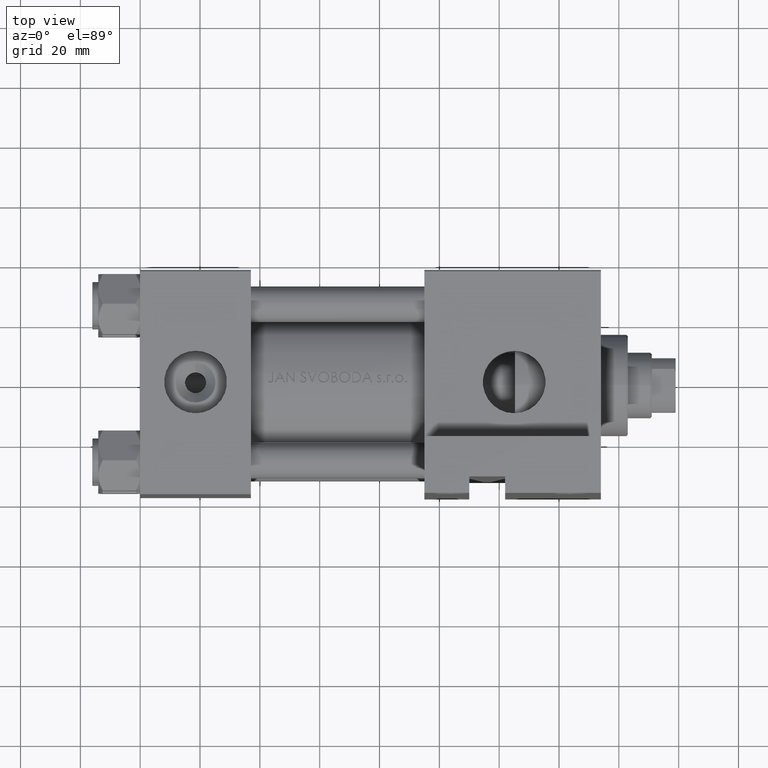
[diagram: clean part render]
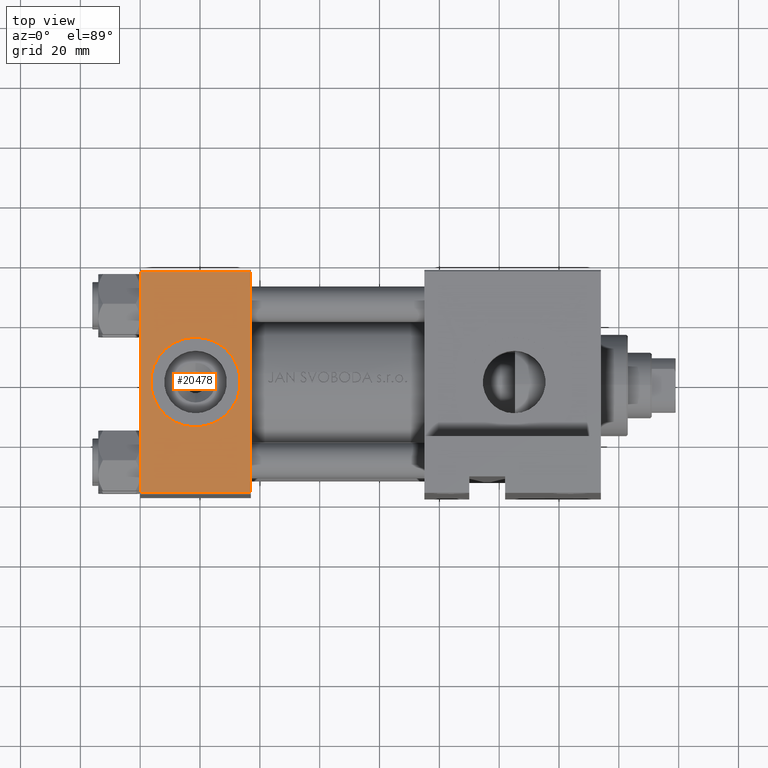
[diagram: same view with one face highlighted and labeled with its STEP entity id]
A machine part, top view. The second image highlights one B-rep face of the part: STEP entity #20478.
In plain terms, the highlighted planar face has unit normal (0, 0, -1).
Its self-contained STEP definition (entity closure, byte-faithful):
#810 = DIRECTION ( 'NONE',  ( 0.000000000000000000, -9.251858538542971581E-17, 1.000000000000000000 ) ) ;
#2284 = ORIENTED_EDGE ( 'NONE', *, *, #5835, .F. ) ;
#2630 = DIRECTION ( 'NONE',  ( 1.000000000000000000, 0.000000000000000000, 0.000000000000000000 ) ) ;
#3782 = CARTESIAN_POINT ( 'NONE',  ( 37.00000000000000000, -37.50000000000000711, 37.49999999999999289 ) ) ;
#4138 = ORIENTED_EDGE ( 'NONE', *, *, #35076, .T. ) ;
#4950 = EDGE_LOOP ( 'NONE', ( #36908, #44206 ) ) ;
#5835 = EDGE_CURVE ( 'NONE', #37373, #13419, #29537, .T. ) ;
#7698 = DIRECTION ( 'NONE',  ( 0.000000000000000000, 0.000000000000000000, -1.000000000000000000 ) ) ;
#8030 = CARTESIAN_POINT ( 'NONE',  ( 37.00000000000000000, -37.50000000000000711, 37.49999999999999289 ) ) ;
#10682 = VECTOR ( 'NONE', #33252, 1000.000000000000000 ) ;
#12233 = AXIS2_PLACEMENT_3D ( 'NONE', #38572, #20011, #34701 ) ;
#13419 = VERTEX_POINT ( 'NONE', #38046 ) ;
#13798 = CARTESIAN_POINT ( 'NONE',  ( 18.50000000000000355, -37.50000000000000711, 14.99999999999999822 ) ) ;
#15140 = CARTESIAN_POINT ( 'NONE',  ( 18.50000000000000000, -37.50000000000000711, -3.469446951953614978E-15 ) ) ;
#17820 = CARTESIAN_POINT ( 'NONE',  ( 0.000000000000000000, -37.50000000000000711, 37.49999999999999289 ) ) ;
#18301 = DIRECTION ( 'NONE',  ( 0.000000000000000000, -1.000000000000000000, -8.673617379884036705E-17 ) ) ;
#20011 = DIRECTION ( 'NONE',  ( 0.000000000000000000, -1.000000000000000000, -8.673617379884036705E-17 ) ) ;
#20478 = ADVANCED_FACE ( 'NONE', ( #26336, #41059 ), #41550, .F. ) ;
#22127 = DIRECTION ( 'NONE',  ( 0.000000000000000000, 9.251858538542971581E-17, -1.000000000000000000 ) ) ;
#22708 = DIRECTION ( 'NONE',  ( -0.000000000000000000, 1.000000000000000000, 9.251858538542971581E-17 ) ) ;
#23944 = EDGE_CURVE ( 'NONE', #42866, #46215, #44532, .T. ) ;
#24569 = CARTESIAN_POINT ( 'NONE',  ( 18.50000000000000000, -37.50000000000000711, -15.00000000000000533 ) ) ;
#26065 = CARTESIAN_POINT ( 'NONE',  ( 0.000000000000000000, -37.50000000000000000, -37.00000000000003553 ) ) ;
#26336 = FACE_BOUND ( 'NONE', #4950, .T. ) ;
#27576 = AXIS2_PLACEMENT_3D ( 'NONE', #15140, #18301, #7698 ) ;
#27886 = ORIENTED_EDGE ( 'NONE', *, *, #45783, .T. ) ;
#29400 = LINE ( 'NONE', #40514, #10682 ) ;
#29537 = LINE ( 'NONE', #3782, #39305 ) ;
#29599 = VERTEX_POINT ( 'NONE', #26065 ) ;
#31842 = VERTEX_POINT ( 'NONE', #33533 ) ;
#32450 = DIRECTION ( 'NONE',  ( 0.000000000000000000, 9.251858538542971581E-17, -1.000000000000000000 ) ) ;
#32533 = EDGE_CURVE ( 'NONE', #31842, #29599, #36592, .T. ) ;
#33020 = VECTOR ( 'NONE', #2630, 1000.000000000000000 ) ;
#33252 = DIRECTION ( 'NONE',  ( -1.000000000000000000, 0.000000000000000000, 0.000000000000000000 ) ) ;
#33533 = CARTESIAN_POINT ( 'NONE',  ( 0.000000000000000000, -37.50000000000000711, 36.99999999999999289 ) ) ;
#33585 = EDGE_CURVE ( 'NONE', #46215, #42866, #39978, .T. ) ;
#34701 = DIRECTION ( 'NONE',  ( 0.000000000000000000, 0.000000000000000000, -1.000000000000000000 ) ) ;
#35076 = EDGE_CURVE ( 'NONE', #29599, #13419, #47221, .T. ) ;
#36592 = LINE ( 'NONE', #17820, #39943 ) ;
#36908 = ORIENTED_EDGE ( 'NONE', *, *, #23944, .F. ) ;
#37373 = VERTEX_POINT ( 'NONE', #39238 ) ;
#37418 = AXIS2_PLACEMENT_3D ( 'NONE', #8030, #22708, #810 ) ;
#38046 = CARTESIAN_POINT ( 'NONE',  ( 37.00000000000000000, -37.50000000000000000, -37.00000000000003553 ) ) ;
#38572 = CARTESIAN_POINT ( 'NONE',  ( 18.50000000000000000, -37.50000000000000711, -3.469446951953614978E-15 ) ) ;
#39238 = CARTESIAN_POINT ( 'NONE',  ( 37.00000000000000000, -37.50000000000000711, 36.99999999999999289 ) ) ;
#39305 = VECTOR ( 'NONE', #32450, 1000.000000000000000 ) ;
#39633 = ORIENTED_EDGE ( 'NONE', *, *, #32533, .T. ) ;
#39943 = VECTOR ( 'NONE', #22127, 1000.000000000000000 ) ;
#39978 = CIRCLE ( 'NONE', #12233, 15.00000000000000178 ) ;
#40514 = CARTESIAN_POINT ( 'NONE',  ( 37.00000000000000000, -37.50000000000000711, 36.99999999999999289 ) ) ;
#41059 = FACE_OUTER_BOUND ( 'NONE', #41897, .T. ) ;
#41550 = PLANE ( 'NONE',  #37418 ) ;
#41897 = EDGE_LOOP ( 'NONE', ( #39633, #4138, #2284, #27886 ) ) ;
#42866 = VERTEX_POINT ( 'NONE', #24569 ) ;
#42883 = CARTESIAN_POINT ( 'NONE',  ( 37.00000000000000000, -37.50000000000000000, -37.00000000000003553 ) ) ;
#44206 = ORIENTED_EDGE ( 'NONE', *, *, #33585, .F. ) ;
#44532 = CIRCLE ( 'NONE', #27576, 15.00000000000000178 ) ;
#45783 = EDGE_CURVE ( 'NONE', #37373, #31842, #29400, .T. ) ;
#46215 = VERTEX_POINT ( 'NONE', #13798 ) ;
#47221 = LINE ( 'NONE', #42883, #33020 ) ;